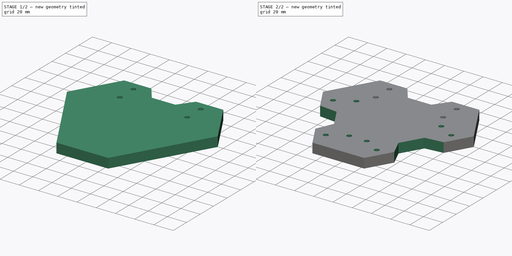
[diagram: build sequence overview — one tinted view per stage of 2, left to right]
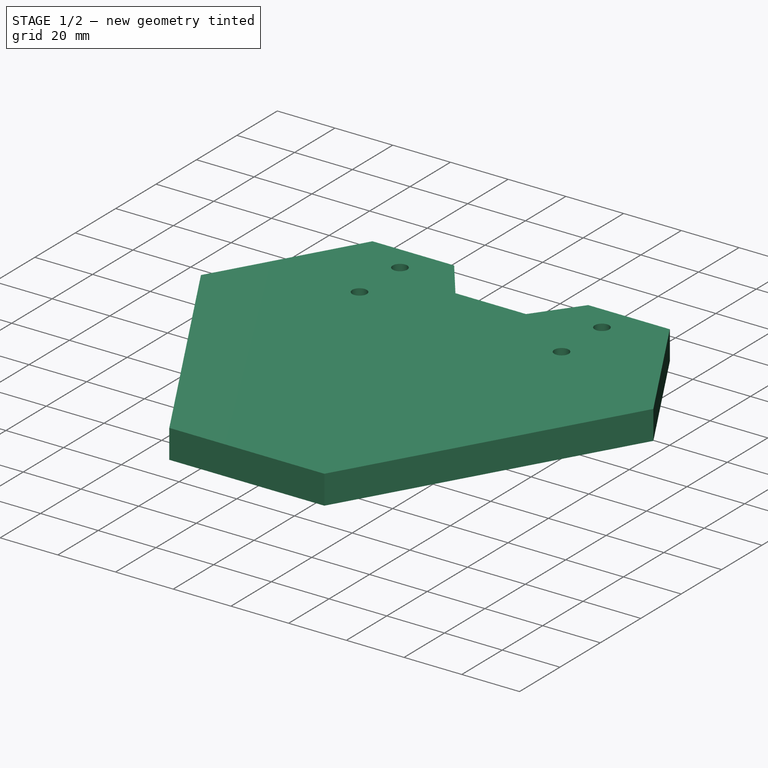
[diagram: stage 1 of 2 — iso view after this stage's code; geometry added in this stage tinted green]
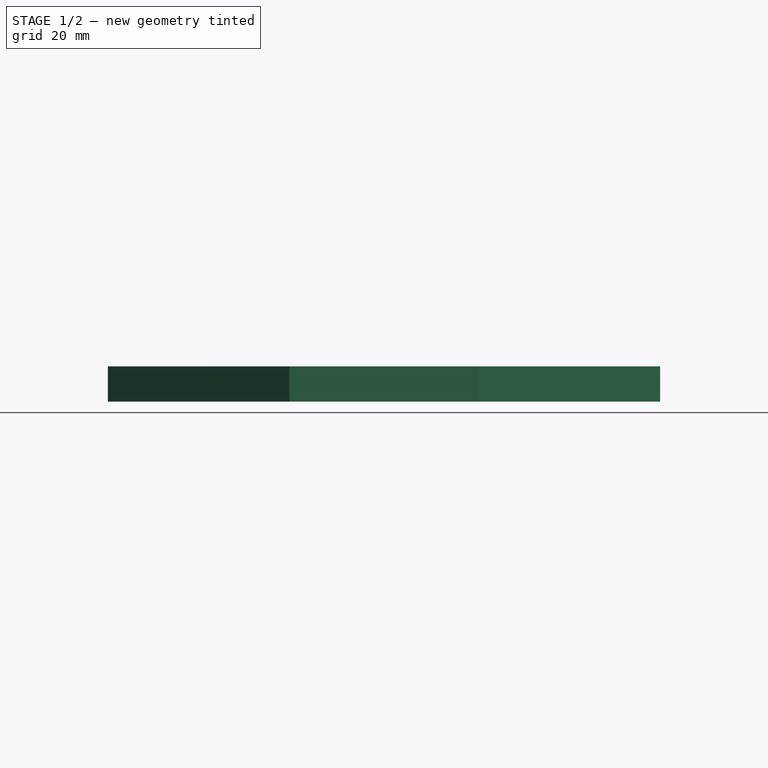
[diagram: stage 1 of 2 — front view after this stage's code; geometry added in this stage tinted green]
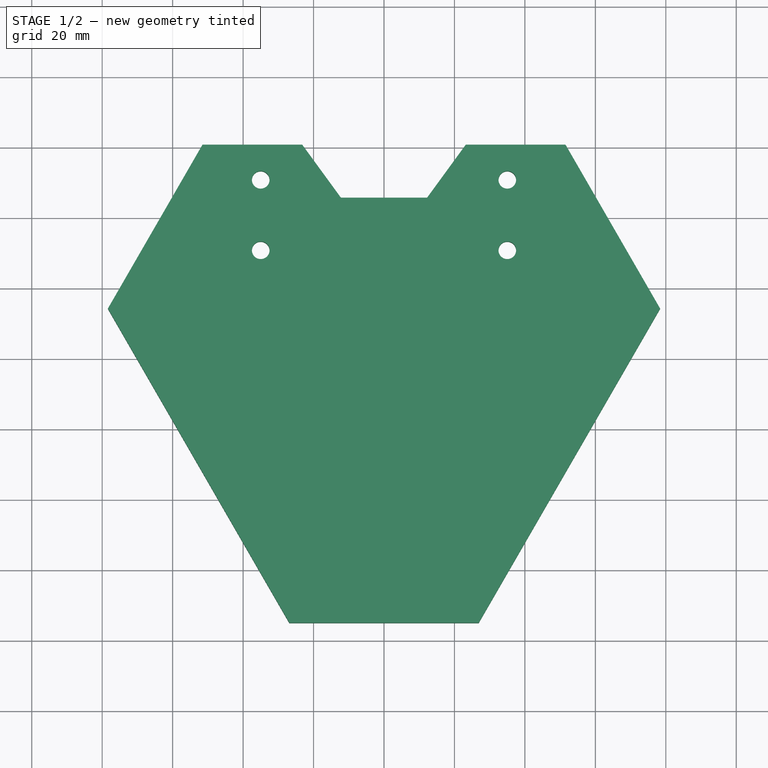
[diagram: stage 1 of 2 — top view after this stage's code; geometry added in this stage tinted green]
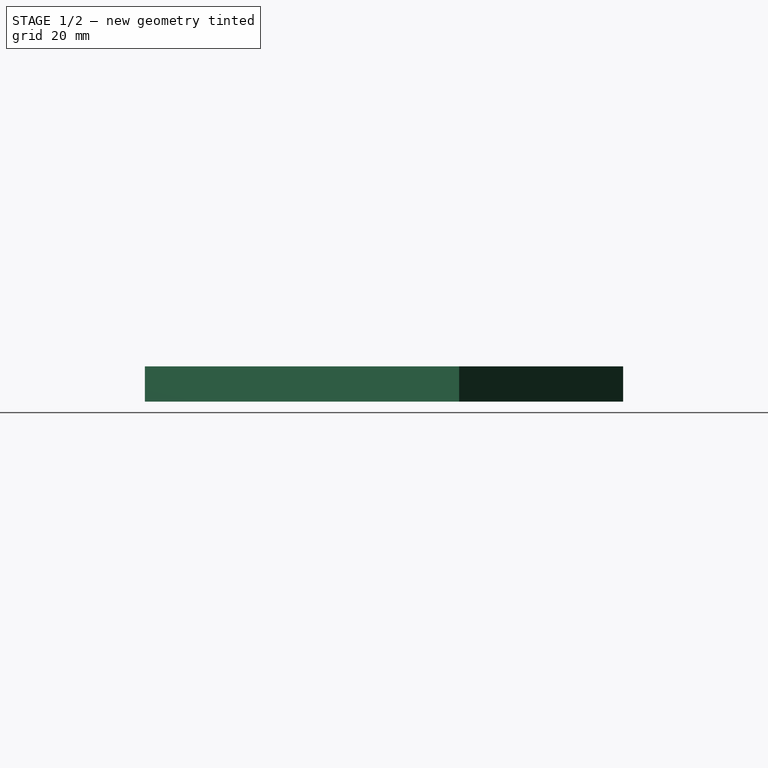
[diagram: stage 1 of 2 — right view after this stage's code; geometry added in this stage tinted green]
FCSTD DOCUMENT  (FreeCAD 1.0R38641 +468 (Git))
Label: 03base_triangle
License: All rights reserved
LicenseURL: https://en.wikipedia.org/wiki/All_rights_reserved
objects: Sketcher::SketchObject×2, Spreadsheet::Sheet×1, PartDesign::Pad×1, PartDesign::Pocket×1, PartDesign::PolarPattern×1, PartDesign::Body×1
note: 13 computed .brp shape members not serialized (recipe doc carries the construction recipe); baked Part::Feature solids carry a one-line shape summary decoded from their .brp

FEATURE [Spreadsheet::Sheet] Spreadsheet  label="ss"
  cells = A1='deltabot calculation - values for kinetic | https://www.marginallyclever.com/other/samples/fk-ik-test.html; A3='Base radius (f); B3(f)=300; D3='vslot_length-28.5!; E3==<<base_triangle_sketch>>.Constraints.vslot_length; F3='28.5 to add (halt nema 23); A4='Bicep length (rf); B4(rf)=200; C4='!= tube actual length; E4(vslot_length)==179.29 + 28.5; A5='Bicep inerdia (od_rf); B5(od_rf)=40; A6='Bicep outerdia (id_rf); B6(id_rf)=36; A7='Bicep end length (end_rf); B7(end_rf)=25; A11='Forearm length (re); B11(re)=400; A12='End Effector radius (e); A13='Base to floor distance (b); A14='wrist(tool); B14(wrist)=90; A17='od_tube; B17(od_tube)=51.3
FEATURE [Sketcher::SketchObject] Sketch011  label="base_triangle_sketch"
  ArcFitTolerance = 1e-06
  AttachmentSupport = -> [XY_Plane012]
  FullyConstrained = false
  MakeInternals = false
  MapMode = 5
  sketch-geometry (16):
    g0: Circle [constr] CenterX=0 CenterY=0 CenterZ=0 NormalX=0 NormalY=0 NormalZ=1 AngleXU=0 Radius=300
    g1: Circle [constr] CenterX=0 CenterY=0 CenterZ=0 NormalX=0 NormalY=0 NormalZ=1 AngleXU=0 Radius=110
    g2: LineSegment [constr] StartX=0 StartY=150 StartZ=0 EndX=-129.904 EndY=-75 EndZ=0
    g3: LineSegment [constr] StartX=-129.904 StartY=-75 StartZ=0 EndX=129.904 EndY=-75 EndZ=0
    g4: LineSegment [constr] StartX=129.904 StartY=-75 StartZ=0 EndX=0 EndY=150 EndZ=0
    g5: Circle [constr] CenterX=0 CenterY=0 CenterZ=0 NormalX=0 NormalY=0 NormalZ=1 AngleXU=0 Radius=150
    g6: LineSegment [constr] StartX=0 StartY=110 StartZ=0 EndX=195.089 EndY=-227.904 EndZ=0
    g7: LineSegment [constr] StartX=95.2628 StartY=-55 StartZ=0 EndX=-294.915 EndY=-55 EndZ=0
    g8: LineSegment [constr] StartX=-71.877 StartY=-83.2688 StartZ=0 EndX=67.7767 EndY=292.244 EndZ=0
    g9: LineSegment StartX=-51.5163 StartY=60.7711 StartZ=0 EndX=51.5163 EndY=60.7711 EndZ=0
    g10: LineSegment StartX=78.3875 StartY=14.2289 StartZ=0 EndX=26.8711 EndY=-75 EndZ=0
    g11: LineSegment StartX=-26.8711 StartY=-75 StartZ=0 EndX=-78.3875 EndY=14.2289 EndZ=0
    g12: LineSegment StartX=-51.5163 StartY=60.7711 StartZ=0 EndX=-78.3875 EndY=14.2289 EndZ=0
    g13: LineSegment StartX=-26.8711 StartY=-75 StartZ=0 EndX=26.8711 EndY=-75 EndZ=0
    g14: LineSegment StartX=51.5163 StartY=60.7711 StartZ=0 EndX=78.3875 EndY=14.2289 EndZ=0
    g15: LineSegment [constr] StartX=95.2628 StartY=-55 StartZ=0 EndX=112.583 EndY=-45 EndZ=0
  constraints (47):
    c: Coincident(g0,g-1)
    c: PointOnObject(g8,g1)
    c: PointOnObject(g7,g1)
    c: PointOnObject(g6,g1)
    c: Coincident(g1,g0)
    c: Coincident(g2,g3)
    c: Coincident(g3,g4)
    c: Coincident(g4,g2)
    c: Equal(g2,g3)
    c: Equal(g2,g4)
    c: PointOnObject(g2,g5)
    c: PointOnObject(g3,g5)
    c: PointOnObject(g4,g5)
    c: Coincident(g5,g0)
    c: PointOnObject(g6,g-2)
    c: PointOnObject(g2,g-2)
    c: PointOnObject(g6,g0)
    c: PointOnObject(g7,g6)
    c: PointOnObject(g7,g0)
    c: Horizontal(g7)
    c: PointOnObject(g6,g8)
    c: PointOnObject(g8,g0)
    c: Diameter(g5) = 300
    c: Distance(g6,g6) = 390.178  'vslot_length'
    c: PointOnObject(g9,g2)
    c: PointOnObject(g9,g4)
    c: Horizontal(g9)
    c: PointOnObject(g10,g4)
    c: PointOnObject(g10,g3)
    c: PointOnObject(g11,g3)
    c: PointOnObject(g11,g2)
    c: Coincident(g9,g12)
    c: Coincident(g12,g11)
    c: Coincident(g11,g13)
    c: Coincident(g13,g10)
    c: Coincident(g9,g14)
    c: Coincident(g14,g10)
    c: Equal(g13,g12)
    c: Equal(g12,g14)
    c: Angle(g13,g11) = 2.0944
    c: Angle(g10,g13) = 2.0944
    c: Parallel(g6,g14)
    c: Coincident(g15,g7)
    c: PointOnObject(g15,g4)
    c: Perpendicular(g6,g15)
    c: Distance(g15,g15) = 20
    c: Diameter(g0) = 600
FEATURE [PartDesign::Pad] Pad007
  Direction = (0,0,1)
  Length = 10
  Length2 = 10
  Profile = -> Sketch011
  ReferenceAxis = -> Sketch011 [N_Axis]
  Refine = true
  Suppressed = false
  Type = 0
FEATURE [Sketcher::SketchObject] Sketch012
  ArcFitTolerance = 1e-06
  AttachmentSupport = -> [XY_Plane012]
  ExternalGeometry = -> [Pad007]
  FullyConstrained = false
  MakeInternals = false
  MapMode = 5
  sketch-geometry (14):
    g0: Circle CenterX=-35 CenterY=50.7711 CenterZ=0 NormalX=0 NormalY=0 NormalZ=1 AngleXU=0 Radius=2.5
    g1: LineSegment [constr] StartX=0 StartY=50.7711 StartZ=0 EndX=-35 EndY=50.7711 EndZ=0
    g2: Circle CenterX=35 CenterY=50.7711 CenterZ=0 NormalX=0 NormalY=0 NormalZ=1 AngleXU=0 Radius=2.5
    g3: ArcOfCircle [constr] CenterX=-35 CenterY=50.7711 CenterZ=0 NormalX=0 NormalY=0 NormalZ=1 AngleXU=0 Radius=2.6 StartAngle=1.5708 EndAngle=4.71239
    g4: ArcOfCircle [constr] CenterX=35 CenterY=50.7711 CenterZ=0 NormalX=0 NormalY=0 NormalZ=1 AngleXU=0 Radius=2.6 StartAngle=4.71239 EndAngle=7.85398
    g5: LineSegment [constr] StartX=-35 StartY=53.3711 StartZ=0 EndX=35 EndY=53.3711 EndZ=0
    g6: LineSegment [constr] StartX=-35 StartY=48.1711 StartZ=0 EndX=35 EndY=48.1711 EndZ=0
    g7: Circle CenterX=-35 CenterY=30.7711 CenterZ=0 NormalX=0 NormalY=0 NormalZ=1 AngleXU=0 Radius=2.5
    g8: Circle CenterX=35 CenterY=30.7711 CenterZ=0 NormalX=0 NormalY=0 NormalZ=1 AngleXU=0 Radius=2.5
    g9: LineSegment StartX=23.2268 StartY=60.7711 StartZ=0 EndX=12.2282 EndY=45.7 EndZ=0
    g10: LineSegment StartX=12.2282 StartY=45.7 StartZ=0 EndX=-12.2282 EndY=45.7 EndZ=0
    g11: LineSegment StartX=-12.2282 StartY=45.7 StartZ=0 EndX=-23.2268 EndY=60.7711 EndZ=0
    g12: LineSegment StartX=-23.2268 StartY=60.7711 StartZ=0 EndX=23.2268 EndY=60.7711 EndZ=0
    g13: GeomPoint X=0 Y=25.7 Z=0
  constraints (32):
    c: Coincident(g0,g1)
    c: Symmetric(g0,g2,g1)
    c: Equal(g2,g0)
    c: Diameter(g0) = 5
    c: Distance(g0,g2) = 70
    c: Tangent(g3,g5) = 1.5708
    c: Tangent(g3,g6) = -1.5708
    c: Tangent(g4,g5) = 1.5708
    c: Tangent(g4,g6) = -1.5708
    c: Equal(g3,g4)
    c: Coincident(g3,g0)
    c: Coincident(g4,g2)
    c: Radius(g4) = 2.6
    c: PointOnObject(g1,g-2)
    c: Perpendicular(g-2,g1)
    c: DistanceY(g2,g-3) = 10
    c: Vertical(g8,g2)
    c: Vertical(g7,g0)
    c: Horizontal(g7,g8)
    c: Equal(g0,g7)
    c: Equal(g7,g8)
    c: DistanceY(g7,g0) = 20
    c: Coincident(g9,g10)
    c: Coincident(g10,g11)
    c: Coincident(g11,g12)
    c: Coincident(g12,g9)
    c: Symmetric(g9,g11,g-2)
    c: Symmetric(g10,g9,g-2)
    c: PointOnObject(g13,g-4)
    c: PointOnObject(g13,g-2)
    c: DistanceY(g13,g10) = 20
    c: PointOnObject(g11,g-3)
FEATURE [PartDesign::Pocket] Pocket003
  BaseFeature = -> Pad007
  Direction = (0,0,-1)
  Length = 5
  Length2 = 5
  Profile = -> Sketch012
  ReferenceAxis = -> Sketch012 [N_Axis]
  Refine = true
  Reversed = true
  Suppressed = false
  Type = 1
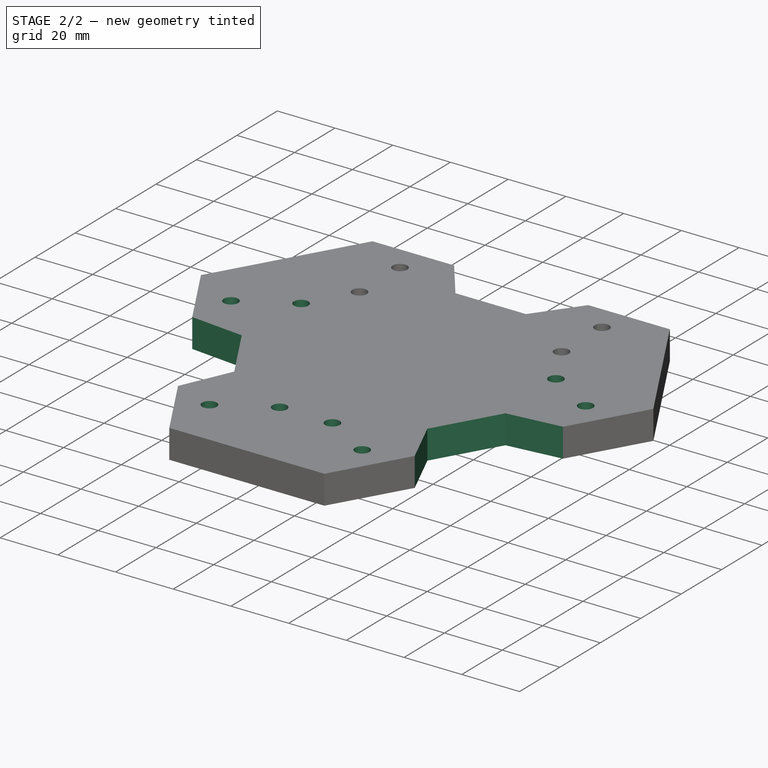
[diagram: stage 2 of 2 — iso view after this stage's code; geometry added in this stage tinted green]
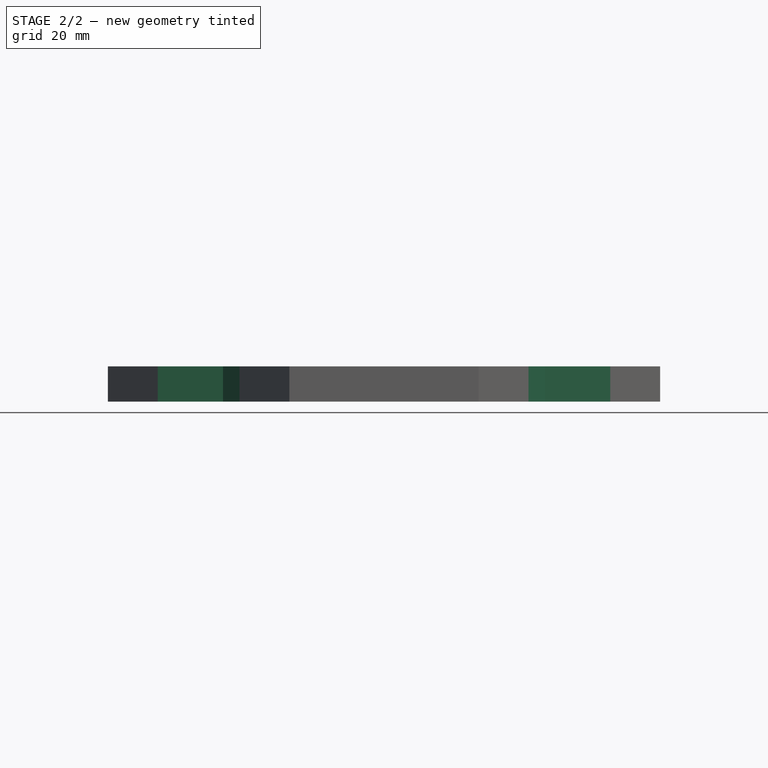
[diagram: stage 2 of 2 — front view after this stage's code; geometry added in this stage tinted green]
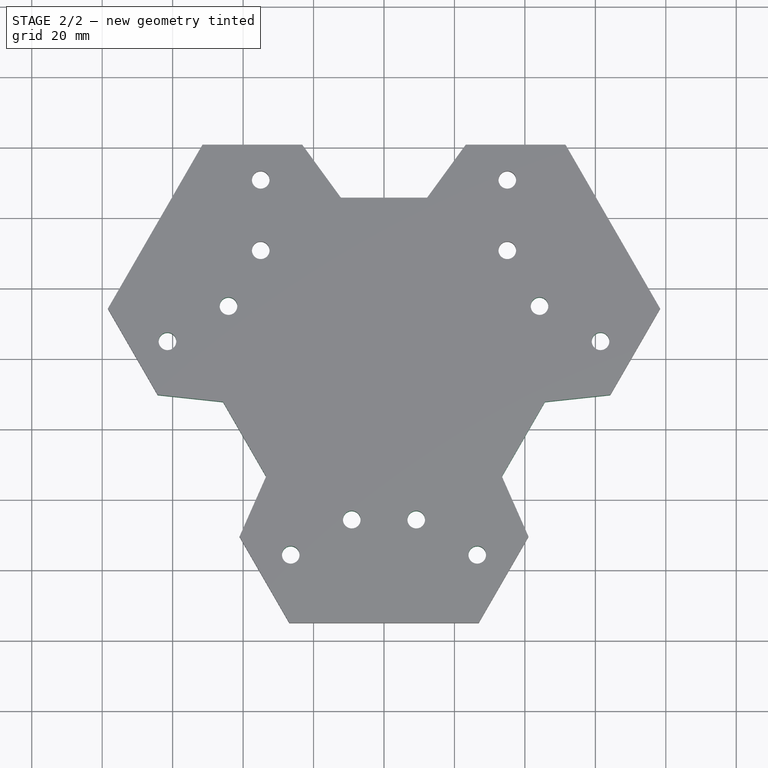
[diagram: stage 2 of 2 — top view after this stage's code; geometry added in this stage tinted green]
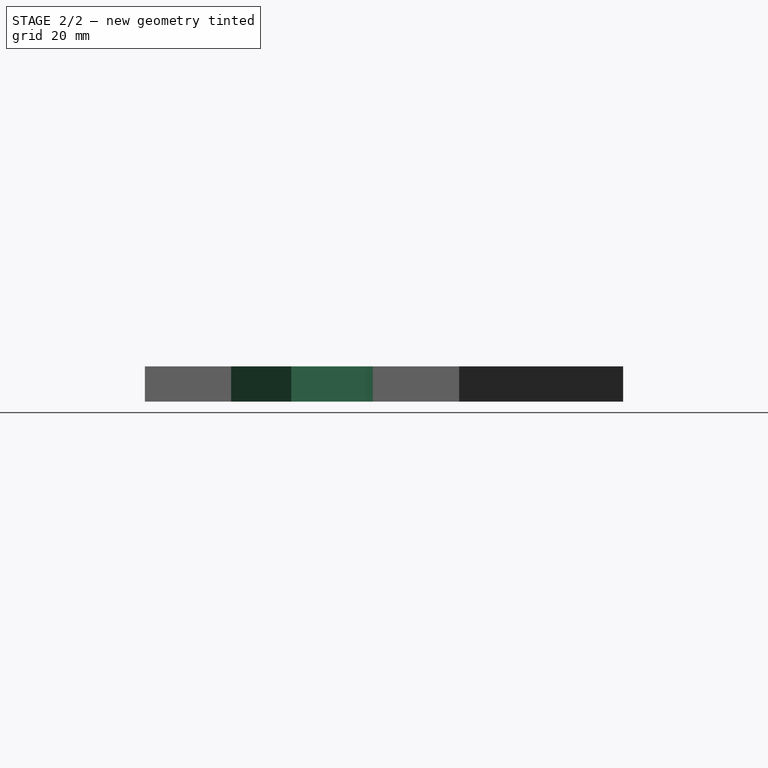
[diagram: stage 2 of 2 — right view after this stage's code; geometry added in this stage tinted green]
FEATURE [PartDesign::PolarPattern] PolarPattern
  Angle = 360
  Axis = -> Sketch012 [N_Axis]
  BaseFeature = -> Pocket003
  Mode = 0
  Occurrences = 3
  Offset = 120
  Originals = -> [Pocket003]
  Refine = true
  Suppressed = false
  TransformMode = 0
FEATURE [PartDesign::Body] Body004  label="base_triangle"
  AllowCompound = false
  Group = -> [Sketch011,Pad007,Sketch012,Pocket003,PolarPattern]
  Origin = -> Origin012
  Tip = -> PolarPattern
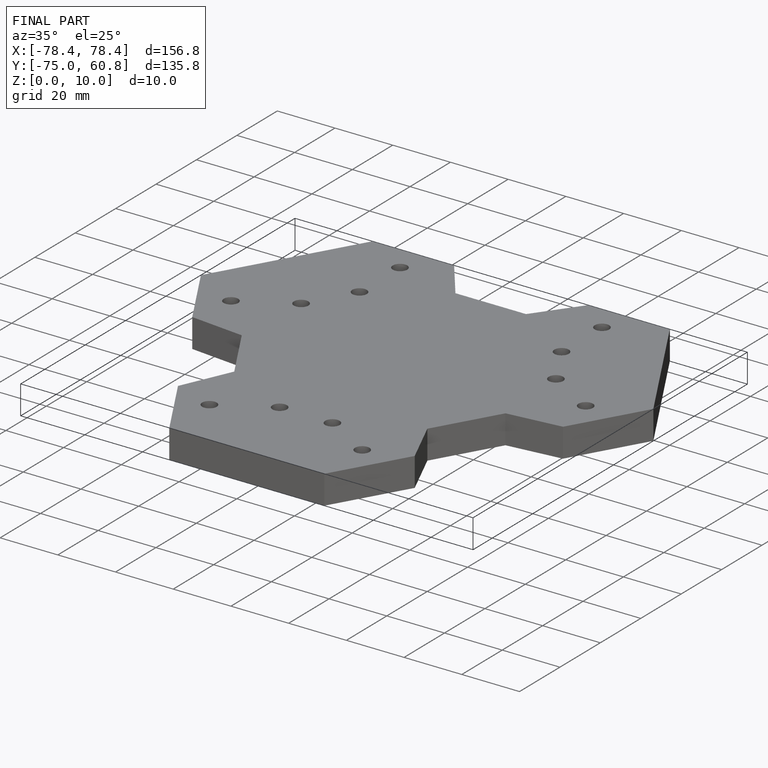
[diagram: finished part — iso view with bounding-box wireframe]
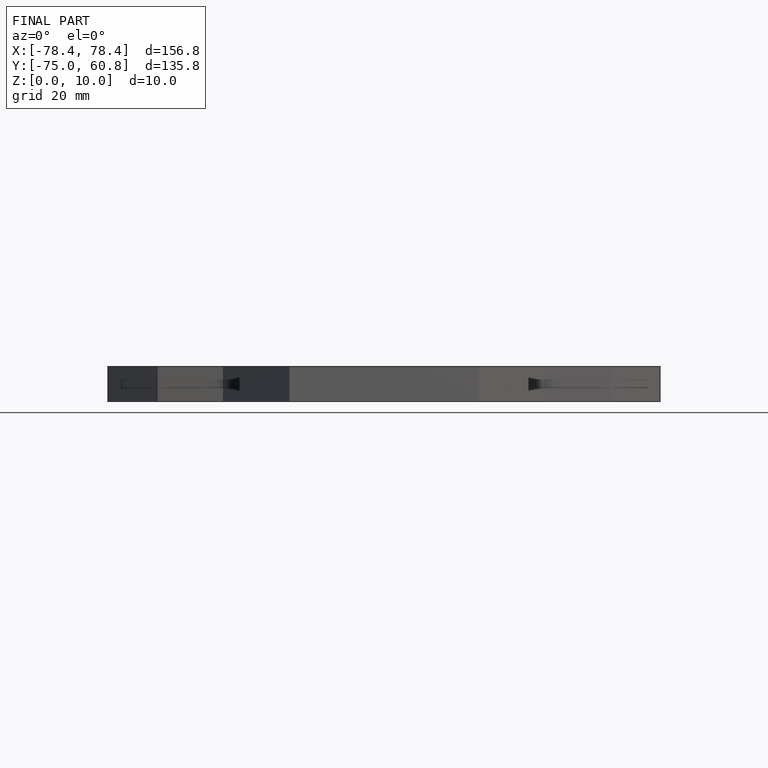
[diagram: finished part — front view with bounding-box wireframe]
